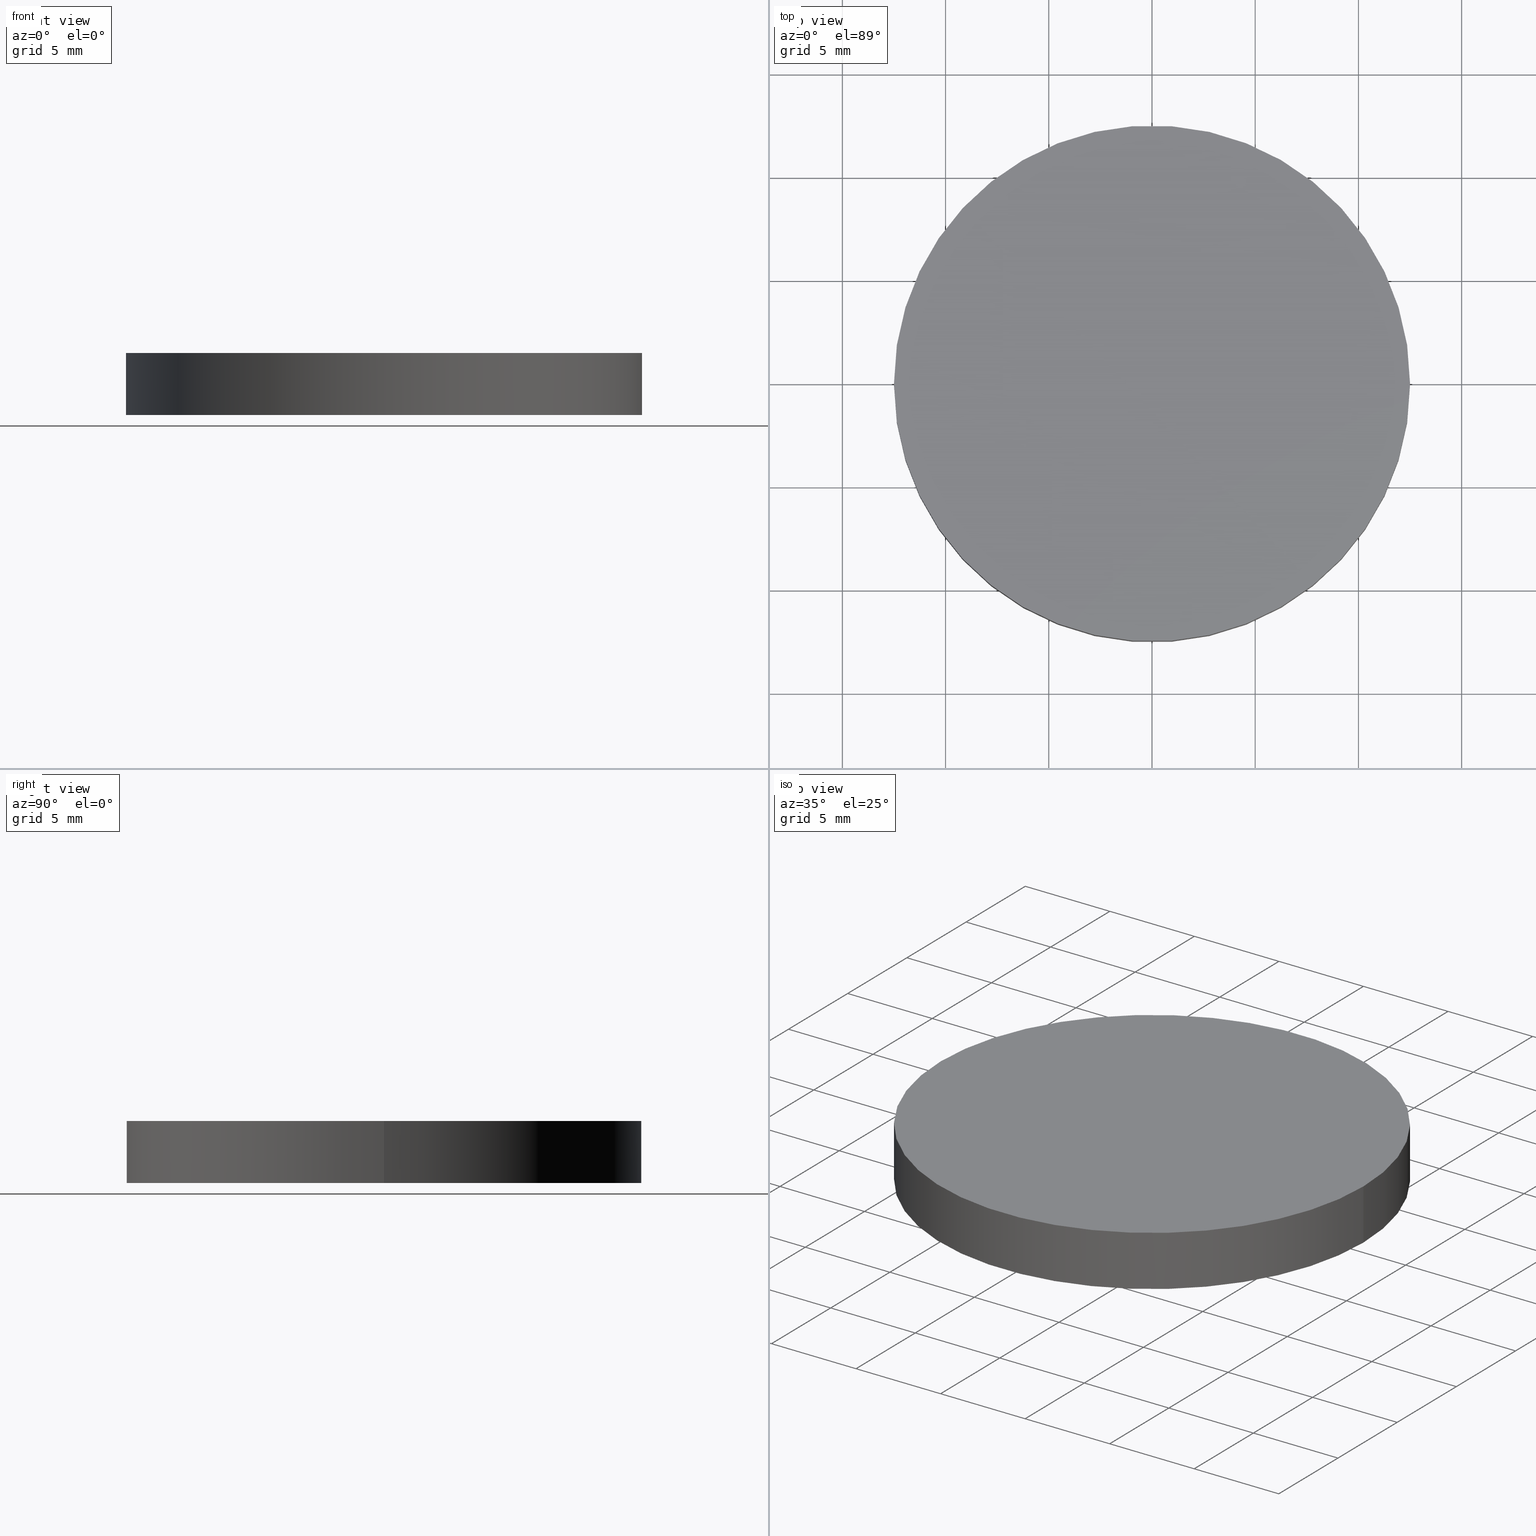
[diagram: canonical four-view strip — front | top / right | iso, engineering-drawing reading convention]
A machine part, canonical four-view strip (front | top / right | iso — engineering-drawing reading convention). The complete STEP part file that produces these views, byte-faithful:
ISO-10303-21;
HEADER;
FILE_DESCRIPTION (( 'STEP AP214' ),
    '1' );
FILE_NAME ('190142.STEP',
    '2019-07-18T02:38:11',
    ( 'user' ),
    ( '΢���й�' ),
    'SwSTEP 2.0',
    'SolidWorks 2016',
    '' );
FILE_SCHEMA (( 'AUTOMOTIVE_DESIGN' ));
ENDSEC;

DATA;
#1 = ORIENTED_EDGE ( 'NONE', *, *, #72, .F. ) ;
#2 = UNCERTAINTY_MEASURE_WITH_UNIT (LENGTH_MEASURE( 1.000000000000000100E-005 ), #107, 'distance_accuracy_value', 'NONE');
#3 =( LENGTH_UNIT ( ) NAMED_UNIT ( * ) SI_UNIT ( .MILLI., .METRE. ) );
#4 = CARTESIAN_POINT ( 'NONE',  ( 0.0000000000000000000, 0.0000000000000000000, 3.000000000000000000 ) ) ;
#5 = PLANE ( 'NONE',  #99 ) ;
#6 = DIRECTION ( 'NONE',  ( 1.000000000000000000, 0.0000000000000000000, 0.0000000000000000000 ) ) ;
#7 = DIRECTION ( 'NONE',  ( 0.0000000000000000000, 0.0000000000000000000, 1.000000000000000000 ) ) ;
#8 = FACE_OUTER_BOUND ( 'NONE', #18, .T. ) ;
#9 = CIRCLE ( 'NONE', #84, 12.50000000000000000 ) ;
#10 = STYLED_ITEM ( 'NONE', ( #101 ), #106 ) ;
#11 = ADVANCED_FACE ( 'NONE', ( #8 ), #87, .F. ) ;
#12 =( LENGTH_UNIT ( ) NAMED_UNIT ( * ) SI_UNIT ( .MILLI., .METRE. ) );
#13 = DIRECTION ( 'NONE',  ( -1.000000000000000000, 0.0000000000000000000, 0.0000000000000000000 ) ) ;
#14 = SURFACE_STYLE_FILL_AREA ( #33 ) ;
#15 = ORIENTED_EDGE ( 'NONE', *, *, #89, .T. ) ;
#16 = AXIS2_PLACEMENT_3D ( 'NONE', #120, #61, #6 ) ;
#17 = EDGE_LOOP ( 'NONE', ( #1, #60, #15, #113 ) ) ;
#18 = EDGE_LOOP ( 'NONE', ( #68, #91 ) ) ;
#19 = PRODUCT_DEFINITION ( 'δ֪', '', #66, #39 ) ;
#20 =( NAMED_UNIT ( * ) PLANE_ANGLE_UNIT ( ) SI_UNIT ( $, .RADIAN. ) );
#21 = AXIS2_PLACEMENT_3D ( 'NONE', #124, #28, #111 ) ;
#22 = DIRECTION ( 'NONE',  ( 0.0000000000000000000, 0.0000000000000000000, 1.000000000000000000 ) ) ;
#23 = FACE_OUTER_BOUND ( 'NONE', #100, .T. ) ;
#24 = PRESENTATION_STYLE_ASSIGNMENT (( #32 ) ) ;
#25 = SURFACE_STYLE_USAGE ( .BOTH. , #121 ) ;
#26 = ORIENTED_EDGE ( 'NONE', *, *, #128, .F. ) ;
#27 = DIRECTION ( 'NONE',  ( 0.0000000000000000000, 0.0000000000000000000, 1.000000000000000000 ) ) ;
#28 = DIRECTION ( 'NONE',  ( 0.0000000000000000000, 0.0000000000000000000, 1.000000000000000000 ) ) ;
#29 = AXIS2_PLACEMENT_3D ( 'NONE', #90, #133, #67 ) ;
#30 = SHAPE_DEFINITION_REPRESENTATION ( #109, #78 ) ;
#31 = CARTESIAN_POINT ( 'NONE',  ( 0.0000000000000000000, 0.0000000000000000000, 3.000000000000000000 ) ) ;
#32 = SURFACE_STYLE_USAGE ( .BOTH. , #46 ) ;
#33 = FILL_AREA_STYLE ('',( #98 ) ) ;
#34 = AXIS2_PLACEMENT_3D ( 'NONE', #4, #129, #13 ) ;
#35 = CARTESIAN_POINT ( 'NONE',  ( -12.50000000000000000, 0.0000000000000000000, 3.000000000000000000 ) ) ;
#36 = CARTESIAN_POINT ( 'NONE',  ( 0.0000000000000000000, 0.0000000000000000000, 0.0000000000000000000 ) ) ;
#37 = AXIS2_PLACEMENT_3D ( 'NONE', #86, #7, #74 ) ;
#38 = DIRECTION ( 'NONE',  ( -0.0000000000000000000, -0.0000000000000000000, -1.000000000000000000 ) ) ;
#39 = PRODUCT_DEFINITION_CONTEXT ( 'detailed design', #65, 'design' ) ;
#40 = ORIENTED_EDGE ( 'NONE', *, *, #88, .T. ) ;
#41 = FACE_OUTER_BOUND ( 'NONE', #116, .T. ) ;
#42 = MECHANICAL_DESIGN_GEOMETRIC_PRESENTATION_REPRESENTATION (  '', ( #137 ), #77 ) ;
#43 = CARTESIAN_POINT ( 'NONE',  ( 12.50000000000000000, 1.530808498934191500E-015, 3.000000000000000000 ) ) ;
#44 = PRODUCT ( '190142', '190142', '', ( #139 ) ) ;
#45 = ORIENTED_EDGE ( 'NONE', *, *, #128, .T. ) ;
#46 = SURFACE_SIDE_STYLE ('',( #92 ) ) ;
#47 = AXIS2_PLACEMENT_3D ( 'NONE', #36, #27, #51 ) ;
#48 = VECTOR ( 'NONE', #140, 1000.000000000000000 ) ;
#49 = APPLICATION_PROTOCOL_DEFINITION ( 'draft international standard', 'automotive_design', 1998, #65 ) ;
#50 = DIRECTION ( 'NONE',  ( 1.000000000000000000, 0.0000000000000000000, 0.0000000000000000000 ) ) ;
#51 = DIRECTION ( 'NONE',  ( 1.000000000000000000, 0.0000000000000000000, -0.0000000000000000000 ) ) ;
#52 = CARTESIAN_POINT ( 'NONE',  ( -12.50000000000000000, 0.0000000000000000000, 0.0000000000000000000 ) ) ;
#53 = LINE ( 'NONE', #35, #48 ) ;
#54 = PRESENTATION_LAYER_ASSIGNMENT (  '', '', ( #137 ) ) ;
#55 =( GEOMETRIC_REPRESENTATION_CONTEXT ( 3 ) GLOBAL_UNCERTAINTY_ASSIGNED_CONTEXT ( ( #123 ) ) GLOBAL_UNIT_ASSIGNED_CONTEXT ( ( #3, #81, #134 ) ) REPRESENTATION_CONTEXT ( 'NONE', 'WORKASPACE' ) );
#56 = FACE_OUTER_BOUND ( 'NONE', #17, .T. ) ;
#57 = AXIS2_PLACEMENT_3D ( 'NONE', #130, #122, #50 ) ;
#58 = COLOUR_RGB ( '',1.000000000000000000, 1.000000000000000000, 1.000000000000000000 ) ;
#59 = ADVANCED_FACE ( 'NONE', ( #56 ), #108, .T. ) ;
#60 = ORIENTED_EDGE ( 'NONE', *, *, #80, .F. ) ;
#61 = DIRECTION ( 'NONE',  ( 0.0000000000000000000, 0.0000000000000000000, 1.000000000000000000 ) ) ;
#62 = DIRECTION ( 'NONE',  ( 1.000000000000000000, 0.0000000000000000000, 0.0000000000000000000 ) ) ;
#63 = FILL_AREA_STYLE_COLOUR ( '', #58 ) ;
#64 = DIRECTION ( 'NONE',  ( 0.0000000000000000000, 0.0000000000000000000, 1.000000000000000000 ) ) ;
#65 = APPLICATION_CONTEXT ( 'automotive_design' ) ;
#66 = PRODUCT_DEFINITION_FORMATION_WITH_SPECIFIED_SOURCE ( '�κ�', '', #44, .NOT_KNOWN. ) ;
#67 = DIRECTION ( 'NONE',  ( -1.000000000000000000, 0.0000000000000000000, 0.0000000000000000000 ) ) ;
#68 = ORIENTED_EDGE ( 'NONE', *, *, #79, .F. ) ;
#69 = UNCERTAINTY_MEASURE_WITH_UNIT (LENGTH_MEASURE( 1.000000000000000100E-005 ), #12, 'distance_accuracy_value', 'NONE');
#70 = VERTEX_POINT ( 'NONE', #52 ) ;
#71 = CARTESIAN_POINT ( 'NONE',  ( -12.50000000000000000, 0.0000000000000000000, 3.000000000000000000 ) ) ;
#72 = EDGE_CURVE ( 'NONE', #110, #97, #75, .T. ) ;
#73 = CARTESIAN_POINT ( 'NONE',  ( 12.50000000000000000, 1.530808498934191500E-015, 3.000000000000000000 ) ) ;
#74 = DIRECTION ( 'NONE',  ( 1.000000000000000000, 0.0000000000000000000, 0.0000000000000000000 ) ) ;
#75 = LINE ( 'NONE', #43, #114 ) ;
#76 = ORIENTED_EDGE ( 'NONE', *, *, #80, .T. ) ;
#77 =( GEOMETRIC_REPRESENTATION_CONTEXT ( 3 ) GLOBAL_UNCERTAINTY_ASSIGNED_CONTEXT ( ( #69 ) ) GLOBAL_UNIT_ASSIGNED_CONTEXT ( ( #12, #20, #105 ) ) REPRESENTATION_CONTEXT ( 'NONE', 'WORKASPACE' ) );
#78 = ADVANCED_BREP_SHAPE_REPRESENTATION ( '190142', ( #106, #16 ), #55 ) ;
#79 = EDGE_CURVE ( 'NONE', #70, #97, #136, .T. ) ;
#80 = EDGE_CURVE ( 'NONE', #85, #110, #131, .T. ) ;
#81 =( NAMED_UNIT ( * ) PLANE_ANGLE_UNIT ( ) SI_UNIT ( $, .RADIAN. ) );
#82 = CIRCLE ( 'NONE', #21, 12.50000000000000000 ) ;
#83 = CARTESIAN_POINT ( 'NONE',  ( 12.50000000000000000, 1.530808498934191500E-015, 0.0000000000000000000 ) ) ;
#84 = AXIS2_PLACEMENT_3D ( 'NONE', #93, #22, #62 ) ;
#85 = VERTEX_POINT ( 'NONE', #71 ) ;
#86 = CARTESIAN_POINT ( 'NONE',  ( 0.0000000000000000000, 0.0000000000000000000, 0.0000000000000000000 ) ) ;
#87 = PLANE ( 'NONE',  #47 ) ;
#88 = EDGE_CURVE ( 'NONE', #97, #70, #82, .T. ) ;
#89 = EDGE_CURVE ( 'NONE', #85, #70, #53, .T. ) ;
#90 = CARTESIAN_POINT ( 'NONE',  ( 0.0000000000000000000, 0.0000000000000000000, 3.000000000000000000 ) ) ;
#91 = ORIENTED_EDGE ( 'NONE', *, *, #88, .F. ) ;
#92 = SURFACE_STYLE_FILL_AREA ( #127 ) ;
#93 = CARTESIAN_POINT ( 'NONE',  ( 0.0000000000000000000, 0.0000000000000000000, 3.000000000000000000 ) ) ;
#94 = PRESENTATION_LAYER_ASSIGNMENT (  '', '', ( #10 ) ) ;
#95 =( NAMED_UNIT ( * ) SI_UNIT ( $, .STERADIAN. ) SOLID_ANGLE_UNIT ( ) );
#96 =( GEOMETRIC_REPRESENTATION_CONTEXT ( 3 ) GLOBAL_UNCERTAINTY_ASSIGNED_CONTEXT ( ( #2 ) ) GLOBAL_UNIT_ASSIGNED_CONTEXT ( ( #107, #135, #95 ) ) REPRESENTATION_CONTEXT ( 'NONE', 'WORKASPACE' ) );
#97 = VERTEX_POINT ( 'NONE', #83 ) ;
#98 = FILL_AREA_STYLE_COLOUR ( '', #112 ) ;
#99 = AXIS2_PLACEMENT_3D ( 'NONE', #31, #64, #138 ) ;
#100 = EDGE_LOOP ( 'NONE', ( #26, #104, #40, #126 ) ) ;
#101 = PRESENTATION_STYLE_ASSIGNMENT (( #25 ) ) ;
#102 = ADVANCED_FACE ( 'NONE', ( #41 ), #5, .T. ) ;
#103 = PRODUCT_RELATED_PRODUCT_CATEGORY ( 'part', '', ( #44 ) ) ;
#104 = ORIENTED_EDGE ( 'NONE', *, *, #72, .T. ) ;
#105 =( NAMED_UNIT ( * ) SI_UNIT ( $, .STERADIAN. ) SOLID_ANGLE_UNIT ( ) );
#106 = MANIFOLD_SOLID_BREP ( '͹̨-����1', #132 ) ;
#107 =( LENGTH_UNIT ( ) NAMED_UNIT ( * ) SI_UNIT ( .MILLI., .METRE. ) );
#108 = CYLINDRICAL_SURFACE ( 'NONE', #29, 12.50000000000000000 ) ;
#109 = PRODUCT_DEFINITION_SHAPE ( 'NONE', 'NONE',  #19 ) ;
#110 = VERTEX_POINT ( 'NONE', #73 ) ;
#111 = DIRECTION ( 'NONE',  ( 1.000000000000000000, 0.0000000000000000000, 0.0000000000000000000 ) ) ;
#112 = COLOUR_RGB ( '',1.000000000000000000, 1.000000000000000000, 1.000000000000000000 ) ;
#113 = ORIENTED_EDGE ( 'NONE', *, *, #79, .T. ) ;
#114 = VECTOR ( 'NONE', #38, 1000.000000000000000 ) ;
#115 = ADVANCED_FACE ( 'NONE', ( #23 ), #125, .T. ) ;
#116 = EDGE_LOOP ( 'NONE', ( #76, #45 ) ) ;
#117 = MECHANICAL_DESIGN_GEOMETRIC_PRESENTATION_REPRESENTATION (  '', ( #10 ), #96 ) ;
#118 = APPLICATION_PROTOCOL_DEFINITION ( 'draft international standard', 'automotive_design', 1998, #119 ) ;
#119 = APPLICATION_CONTEXT ( 'automotive_design' ) ;
#120 = CARTESIAN_POINT ( 'NONE',  ( 0.0000000000000000000, 0.0000000000000000000, 0.0000000000000000000 ) ) ;
#121 = SURFACE_SIDE_STYLE ('',( #14 ) ) ;
#122 = DIRECTION ( 'NONE',  ( 0.0000000000000000000, 0.0000000000000000000, 1.000000000000000000 ) ) ;
#123 = UNCERTAINTY_MEASURE_WITH_UNIT (LENGTH_MEASURE( 1.000000000000000100E-005 ), #3, 'distance_accuracy_value', 'NONE');
#124 = CARTESIAN_POINT ( 'NONE',  ( 0.0000000000000000000, 0.0000000000000000000, 0.0000000000000000000 ) ) ;
#125 = CYLINDRICAL_SURFACE ( 'NONE', #34, 12.50000000000000000 ) ;
#126 = ORIENTED_EDGE ( 'NONE', *, *, #89, .F. ) ;
#127 = FILL_AREA_STYLE ('',( #63 ) ) ;
#128 = EDGE_CURVE ( 'NONE', #110, #85, #9, .T. ) ;
#129 = DIRECTION ( 'NONE',  ( -0.0000000000000000000, -0.0000000000000000000, -1.000000000000000000 ) ) ;
#130 = CARTESIAN_POINT ( 'NONE',  ( 0.0000000000000000000, 0.0000000000000000000, 3.000000000000000000 ) ) ;
#131 = CIRCLE ( 'NONE', #57, 12.50000000000000000 ) ;
#132 = CLOSED_SHELL ( 'NONE', ( #115, #59, #102, #11 ) ) ;
#133 = DIRECTION ( 'NONE',  ( -0.0000000000000000000, -0.0000000000000000000, -1.000000000000000000 ) ) ;
#134 =( NAMED_UNIT ( * ) SI_UNIT ( $, .STERADIAN. ) SOLID_ANGLE_UNIT ( ) );
#135 =( NAMED_UNIT ( * ) PLANE_ANGLE_UNIT ( ) SI_UNIT ( $, .RADIAN. ) );
#136 = CIRCLE ( 'NONE', #37, 12.50000000000000000 ) ;
#137 = STYLED_ITEM ( 'NONE', ( #24 ), #78 ) ;
#138 = DIRECTION ( 'NONE',  ( 1.000000000000000000, 0.0000000000000000000, -0.0000000000000000000 ) ) ;
#139 = PRODUCT_CONTEXT ( 'NONE', #119, 'mechanical' ) ;
#140 = DIRECTION ( 'NONE',  ( -0.0000000000000000000, -0.0000000000000000000, -1.000000000000000000 ) ) ;
ENDSEC;
END-ISO-10303-21;
